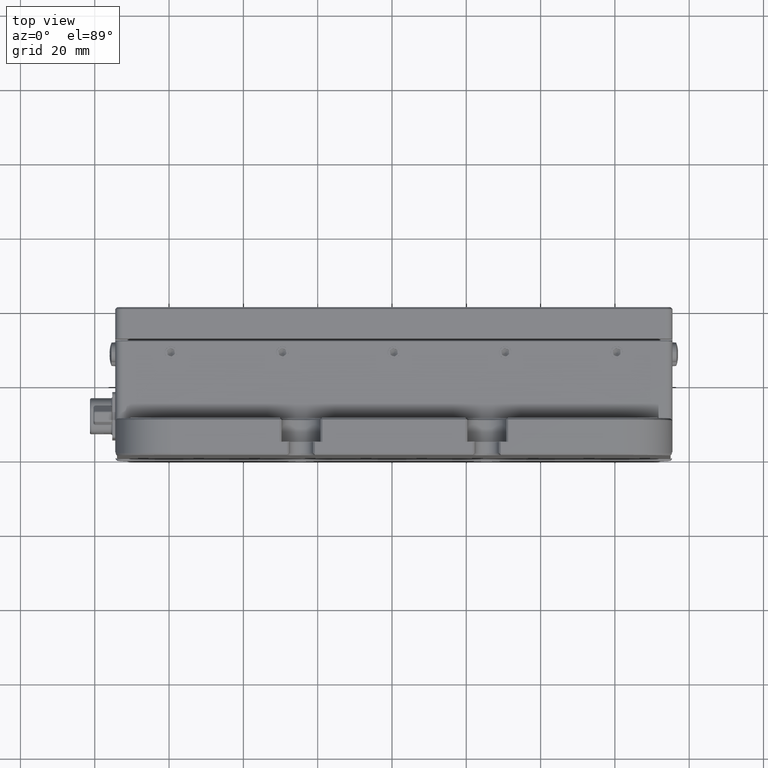
[diagram: clean part render]
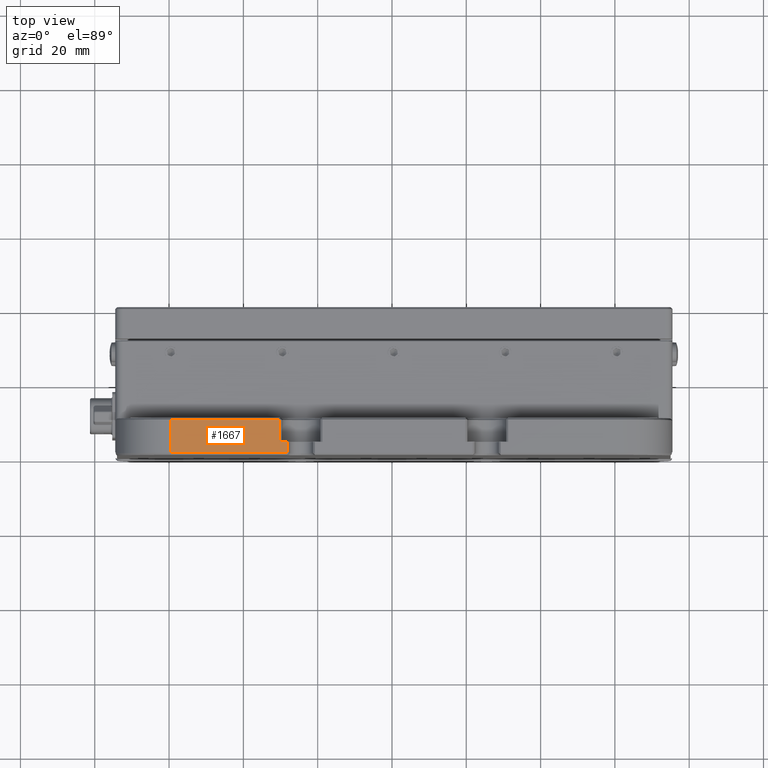
[diagram: same view with one face highlighted and labeled with its STEP entity id]
A machine part, top view. The second image highlights one B-rep face of the part: STEP entity #1667.
In plain terms, the highlighted planar face has unit normal (0, 0, -1).
Its self-contained STEP definition (entity closure, byte-faithful):
#312 = CARTESIAN_POINT ( 'NONE',  ( 189.7516253540470100, 3.499999999999985800, 104.6178906604377700 ) ) ;
#1529 = CARTESIAN_POINT ( 'NONE',  ( 210.5016253540469500, -1.508377782760009900E-014, 104.6178906604377700 ) ) ;
#1667 = ADVANCED_FACE ( 'NONE', ( #38804 ), #35976, .F. ) ;
#2129 = EDGE_CURVE ( 'NONE', #46576, #43942, #44971, .T. ) ;
#3151 = EDGE_CURVE ( 'NONE', #3451, #53260, #40538, .T. ) ;
#3451 = VERTEX_POINT ( 'NONE', #36578 ) ;
#4010 = VECTOR ( 'NONE', #28224, 1000.000000000000000 ) ;
#7631 = CARTESIAN_POINT ( 'NONE',  ( 189.7516253540470100, -1.508377782760009900E-014, 104.6178906604377700 ) ) ;
#9014 = VERTEX_POINT ( 'NONE', #63430 ) ;
#9021 = VECTOR ( 'NONE', #12978, 1000.000000000000000 ) ;
#10964 = DIRECTION ( 'NONE',  ( 0.0000000000000000000, 1.000000000000000000, 1.224646799147353200E-016 ) ) ;
#11351 = ORIENTED_EDGE ( 'NONE', *, *, #61669, .F. ) ;
#12149 = CARTESIAN_POINT ( 'NONE',  ( 210.5016253540469500, 9.499999999999998200, 104.6178906604377700 ) ) ;
#12344 = ORIENTED_EDGE ( 'NONE', *, *, #40364, .F. ) ;
#12853 = ORIENTED_EDGE ( 'NONE', *, *, #3151, .F. ) ;
#12978 = DIRECTION ( 'NONE',  ( 1.000000000000000000, -0.0000000000000000000, 0.0000000000000000000 ) ) ;
#13199 = CARTESIAN_POINT ( 'NONE',  ( 210.5016253540469500, 3.499999999999985300, 104.6178906604377700 ) ) ;
#14224 = VECTOR ( 'NONE', #51945, 1000.000000000000000 ) ;
#17597 = VERTEX_POINT ( 'NONE', #50660 ) ;
#18522 = VECTOR ( 'NONE', #32192, 1000.000000000000000 ) ;
#23676 = CARTESIAN_POINT ( 'NONE',  ( 160.5016253540470600, -2.067966000817043200E-014, 104.6178906604377500 ) ) ;
#24470 = CARTESIAN_POINT ( 'NONE',  ( 191.7516253540470100, -1.508377782760009900E-014, 104.6178906604377700 ) ) ;
#25430 = EDGE_CURVE ( 'NONE', #43942, #9014, #56499, .T. ) ;
#28224 = DIRECTION ( 'NONE',  ( -1.119176436114068600E-016, 1.000000000000000000, 1.224646799147353200E-016 ) ) ;
#31113 = ORIENTED_EDGE ( 'NONE', *, *, #43081, .F. ) ;
#31303 = AXIS2_PLACEMENT_3D ( 'NONE', #1529, #36421, #10964 ) ;
#32192 = DIRECTION ( 'NONE',  ( -0.0000000000000000000, -1.000000000000000000, -1.224646799147353200E-016 ) ) ;
#35976 = PLANE ( 'NONE',  #31303 ) ;
#36421 = DIRECTION ( 'NONE',  ( 0.0000000000000000000, 1.224646799147353200E-016, -1.000000000000000000 ) ) ;
#36578 = CARTESIAN_POINT ( 'NONE',  ( 191.7516253540470100, 0.5000000000000269800, 104.6178906604377700 ) ) ;
#38804 = FACE_OUTER_BOUND ( 'NONE', #46006, .T. ) ;
#40364 = EDGE_CURVE ( 'NONE', #17597, #46576, #49939, .T. ) ;
#40538 = LINE ( 'NONE', #49403, #52182 ) ;
#41077 = LINE ( 'NONE', #24470, #60459 ) ;
#43081 = EDGE_CURVE ( 'NONE', #9014, #3451, #41077, .T. ) ;
#43942 = VERTEX_POINT ( 'NONE', #312 ) ;
#44971 = LINE ( 'NONE', #7631, #18522 ) ;
#46006 = EDGE_LOOP ( 'NONE', ( #31113, #61167, #52567, #12344, #11351, #12853 ) ) ;
#46576 = VERTEX_POINT ( 'NONE', #63874 ) ;
#49403 = CARTESIAN_POINT ( 'NONE',  ( 210.5016253540469500, 0.5000000000000269800, 104.6178906604377700 ) ) ;
#49462 = DIRECTION ( 'NONE',  ( -0.0000000000000000000, -1.000000000000000000, -1.224646799147353200E-016 ) ) ;
#49939 = LINE ( 'NONE', #12149, #14224 ) ;
#50660 = CARTESIAN_POINT ( 'NONE',  ( 160.5016253540470600, 9.499999999999998200, 104.6178906604377700 ) ) ;
#51945 = DIRECTION ( 'NONE',  ( 1.000000000000000000, -0.0000000000000000000, 0.0000000000000000000 ) ) ;
#52182 = VECTOR ( 'NONE', #54823, 1000.000000000000000 ) ;
#52567 = ORIENTED_EDGE ( 'NONE', *, *, #2129, .F. ) ;
#53260 = VERTEX_POINT ( 'NONE', #61853 ) ;
#54633 = LINE ( 'NONE', #23676, #4010 ) ;
#54823 = DIRECTION ( 'NONE',  ( -1.000000000000000000, 0.0000000000000000000, -0.0000000000000000000 ) ) ;
#56499 = LINE ( 'NONE', #13199, #9021 ) ;
#60459 = VECTOR ( 'NONE', #49462, 1000.000000000000000 ) ;
#61167 = ORIENTED_EDGE ( 'NONE', *, *, #25430, .F. ) ;
#61669 = EDGE_CURVE ( 'NONE', #53260, #17597, #54633, .T. ) ;
#61853 = CARTESIAN_POINT ( 'NONE',  ( 160.5016253540470600, 0.5000000000000065500, 104.6178906604377500 ) ) ;
#63430 = CARTESIAN_POINT ( 'NONE',  ( 191.7516253540470100, 3.499999999999985800, 104.6178906604377700 ) ) ;
#63874 = CARTESIAN_POINT ( 'NONE',  ( 189.7516253540470100, 9.499999999999998200, 104.6178906604377700 ) ) ;